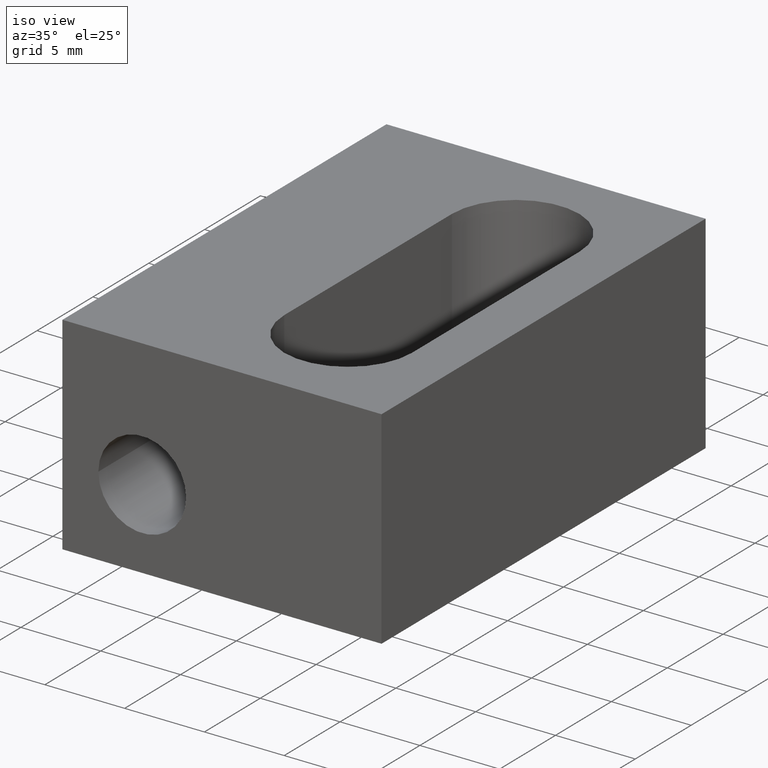
[diagram: clean part render]
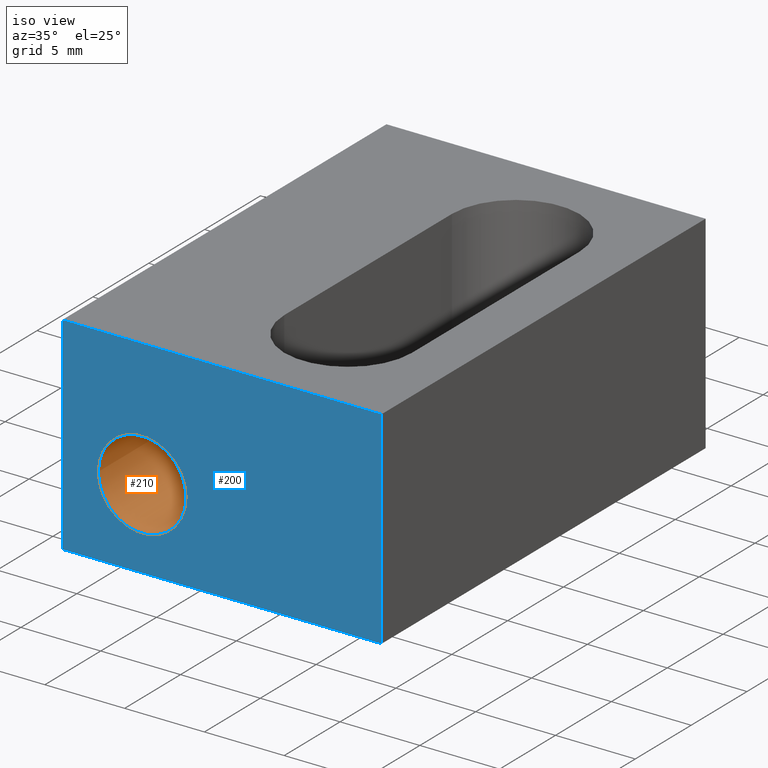
[diagram: same view with the hole feature highlighted: cylindrical wall and planar end face, labeled with their STEP entity ids]
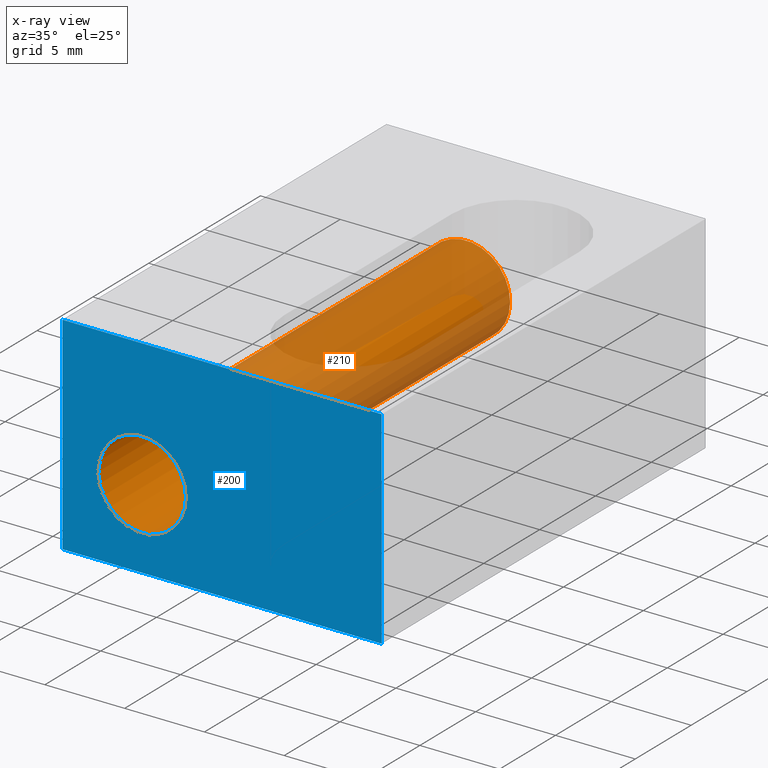
[diagram: x-ray of the same camera — body ghosted, the hole faces saturated]
A machine part, iso view. The highlighted faces form one hole feature of diameter 5.5 mm: the cylindrical wall (entity #210, orange) and its adjacent planar end face (entity #200, blue) — they share a circular edge in the B-rep.
The next image is the same camera in x-ray (body ghosted, the hole faces saturated) — the bore reads through the body.
Wall:
#17=CYLINDRICAL_SURFACE('',#229,2.75);
#22=FACE_BOUND('',#55,.T.);
#23=CIRCLE('',#214,2.75);
#24=CIRCLE('',#217,2.75);
#39=FACE_OUTER_BOUND('',#54,.T.);
#54=EDGE_LOOP('',(#190));
#55=EDGE_LOOP('',(#191));
#100=VERTEX_POINT('',#296);
#105=VERTEX_POINT('',#310);
#118=EDGE_CURVE('',#100,#100,#23,.T.);
#125=EDGE_CURVE('',#105,#105,#24,.T.);
#190=ORIENTED_EDGE('',*,*,#125,.T.);
#191=ORIENTED_EDGE('',*,*,#118,.T.);
#210=ADVANCED_FACE('',(#39,#22),#17,.F.);
#214=AXIS2_PLACEMENT_3D('',#297,#238,#239);
#217=AXIS2_PLACEMENT_3D('',#311,#250,#251);
#229=AXIS2_PLACEMENT_3D('',#341,#284,#285);
#238=DIRECTION('center_axis',(0.,-1.,0.));
#239=DIRECTION('ref_axis',(1.,0.,0.));
#250=DIRECTION('center_axis',(0.,1.,0.));
#251=DIRECTION('ref_axis',(1.,0.,0.));
#284=DIRECTION('center_axis',(0.,-1.,0.));
#285=DIRECTION('ref_axis',(1.,0.,0.));
#296=CARTESIAN_POINT('',(-10.7499999999479,-6.99999999997226,5.));
#297=CARTESIAN_POINT('Origin',(-7.99999999994793,-6.99999999997226,5.));
#310=CARTESIAN_POINT('',(-10.7499999999479,21.9999999999118,5.));
#311=CARTESIAN_POINT('Origin',(-7.99999999994793,21.9999999999118,5.));
#341=CARTESIAN_POINT('Origin',(-7.99999999994793,-6.99999999997226,5.));
End face:
#18=FACE_BOUND('',#41,.T.);
#23=CIRCLE('',#214,2.75);
#29=FACE_OUTER_BOUND('',#40,.T.);
#40=EDGE_LOOP('',(#140,#141,#142,#143));
#41=EDGE_LOOP('',(#144));
#56=LINE('',#290,#76);
#57=LINE('',#292,#77);
#58=LINE('',#294,#78);
#59=LINE('',#295,#79);
#76=VECTOR('',#234,13.);
#77=VECTOR('',#235,19.99999999992);
#78=VECTOR('',#236,13.);
#79=VECTOR('',#237,19.99999999992);
#96=VERTEX_POINT('',#288);
#97=VERTEX_POINT('',#289);
#98=VERTEX_POINT('',#291);
#99=VERTEX_POINT('',#293);
#100=VERTEX_POINT('',#296);
#114=EDGE_CURVE('',#96,#97,#56,.T.);
#115=EDGE_CURVE('',#97,#98,#57,.T.);
#116=EDGE_CURVE('',#99,#98,#58,.T.);
#117=EDGE_CURVE('',#96,#99,#59,.T.);
#118=EDGE_CURVE('',#100,#100,#23,.T.);
#140=ORIENTED_EDGE('',*,*,#114,.T.);
#141=ORIENTED_EDGE('',*,*,#115,.T.);
#142=ORIENTED_EDGE('',*,*,#116,.F.);
#143=ORIENTED_EDGE('',*,*,#117,.F.);
#144=ORIENTED_EDGE('',*,*,#118,.F.);
#192=PLANE('',#213);
#200=ADVANCED_FACE('',(#29,#18),#192,.F.);
#213=AXIS2_PLACEMENT_3D('',#287,#232,#233);
#214=AXIS2_PLACEMENT_3D('',#297,#238,#239);
#232=DIRECTION('center_axis',(0.,1.,0.));
#233=DIRECTION('ref_axis',(0.,0.,1.));
#234=DIRECTION('',(0.,0.,-1.));
#235=DIRECTION('',(1.,0.,0.));
#236=DIRECTION('',(0.,0.,-1.));
#237=DIRECTION('',(1.,0.,0.));
#238=DIRECTION('center_axis',(0.,-1.,0.));
#239=DIRECTION('ref_axis',(1.,0.,0.));
#287=CARTESIAN_POINT('Origin',(-12.9999999999479,-6.99999999997226,13.));
#288=CARTESIAN_POINT('',(-12.9999999999479,-6.99999999997226,13.));
#289=CARTESIAN_POINT('',(-12.9999999999479,-6.99999999997226,0.));
#290=CARTESIAN_POINT('',(-12.9999999999479,-6.99999999997226,13.));
#291=CARTESIAN_POINT('',(6.99999999997203,-6.99999999997226,0.));
#292=CARTESIAN_POINT('',(-12.9999999999479,-6.99999999997226,0.));
#293=CARTESIAN_POINT('',(6.99999999997203,-6.99999999997226,13.));
#294=CARTESIAN_POINT('',(6.99999999997203,-6.99999999997226,13.));
#295=CARTESIAN_POINT('',(-12.9999999999479,-6.99999999997226,13.));
#296=CARTESIAN_POINT('',(-10.7499999999479,-6.99999999997226,5.));
#297=CARTESIAN_POINT('Origin',(-7.99999999994793,-6.99999999997226,5.));